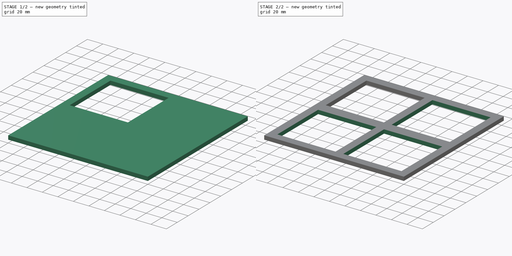
[diagram: build sequence overview — one tinted view per stage of 2, left to right]
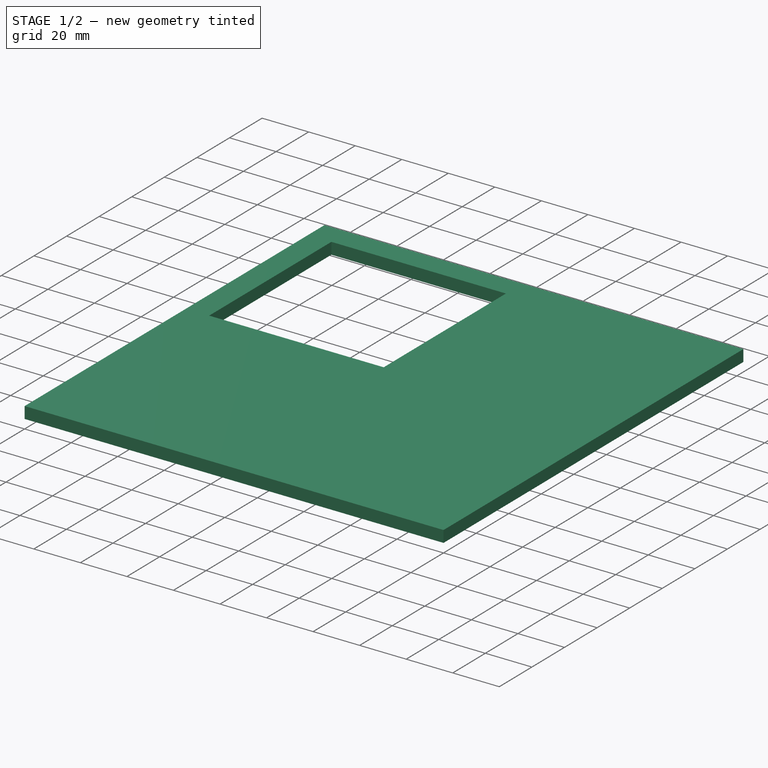
[diagram: stage 1 of 2 — iso view after this stage's code; geometry added in this stage tinted green]
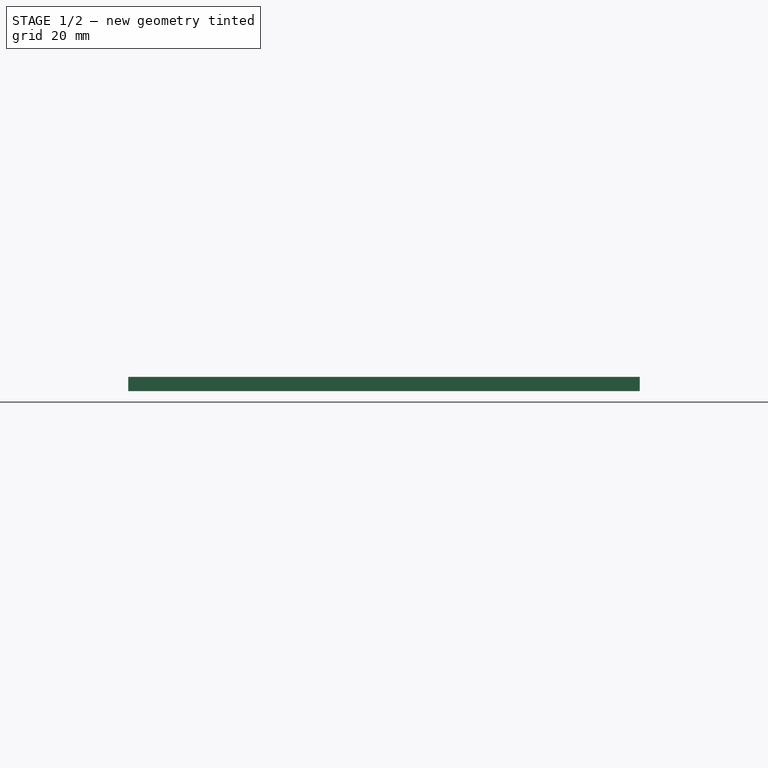
[diagram: stage 1 of 2 — front view after this stage's code; geometry added in this stage tinted green]
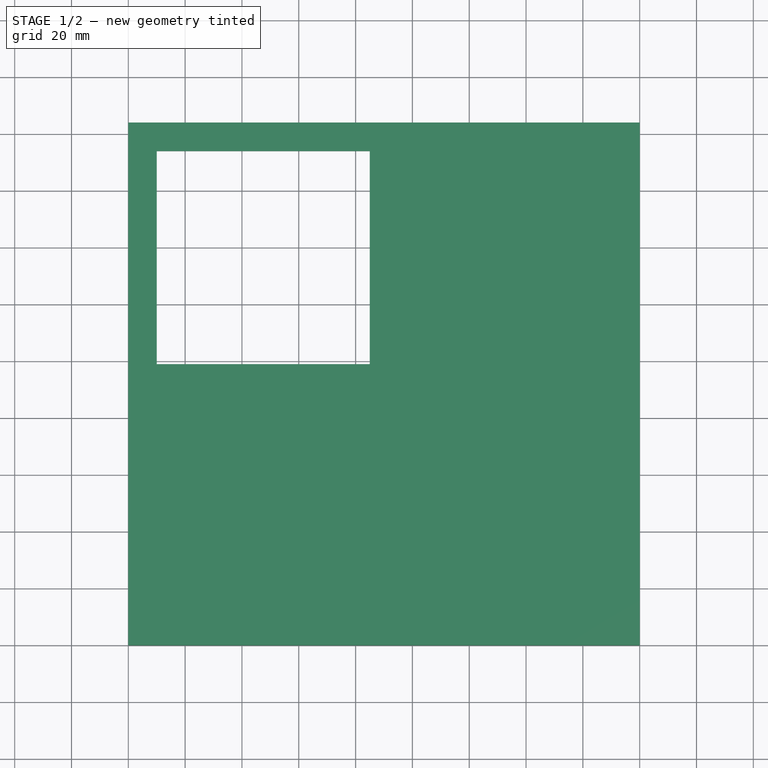
[diagram: stage 1 of 2 — top view after this stage's code; geometry added in this stage tinted green]
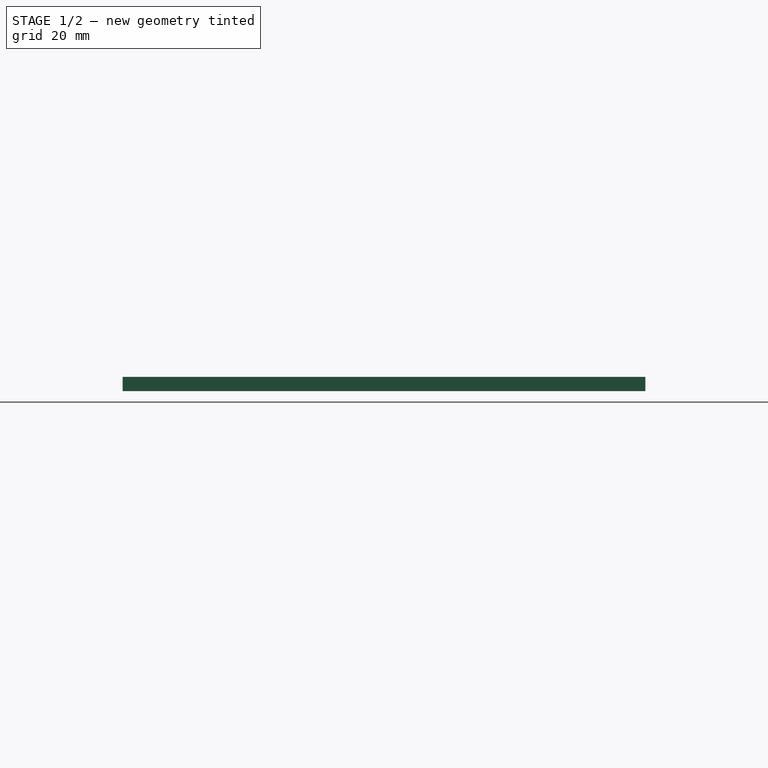
[diagram: stage 1 of 2 — right view after this stage's code; geometry added in this stage tinted green]
FCSTD DOCUMENT  (FreeCAD 1.0R39319 (Git))
Label: epaper_holder
License: All rights reserved
objects: Sketcher::SketchObject×2, PartDesign::LinearPattern×2, PartDesign::Pad×1, PartDesign::Pocket×1, PartDesign::MultiTransform×1, PartDesign::Body×1
note: 17 computed .brp shape members not serialized (recipe doc carries the construction recipe); baked Part::Feature solids carry a one-line shape summary decoded from their .brp

FEATURE [Sketcher::SketchObject] Sketch
  ArcFitTolerance = 1e-06
  AttachmentSupport = -> [XY_Plane]
  FullyConstrained = false
  MakeInternals = false
  MapMode = 5
  sketch-geometry (4):
    g0: LineSegment StartX=0 StartY=0.0398328 StartZ=0 EndX=180 EndY=0.0398328 EndZ=0
    g1: LineSegment StartX=180 StartY=0.0398328 StartZ=0 EndX=180 EndY=184.04 EndZ=0
    g2: LineSegment StartX=180 StartY=184.04 StartZ=0 EndX=0 EndY=184.04 EndZ=0
    g3: LineSegment StartX=0 StartY=184.04 StartZ=0 EndX=0 EndY=0.0398328 EndZ=0
  constraints (11):
    c: Coincident(g0,g1)
    c: Coincident(g1,g2)
    c: Coincident(g2,g3)
    c: Coincident(g3,g0)
    c: Horizontal(g0)
    c: Horizontal(g2)
    c: Vertical(g1)
    c: Vertical(g3)
    c: PointOnObject(g0,g-2)
    c: DistanceX(g2,g2) = 180
    c: DistanceY(g3,g3) = 184
FEATURE [PartDesign::Pad] Pad
  Direction = (0,0,1)
  Length = 5
  Length2 = 10
  Profile = -> Sketch
  ReferenceAxis = -> Sketch [N_Axis]
  Refine = true
  Suppressed = false
  Type = 0
FEATURE [Sketcher::SketchObject] Sketch001
  ArcFitTolerance = 1e-06
  AttachmentSupport = -> [Pad]
  FullyConstrained = true
  MakeInternals = false
  MapMode = 5
  Placement = pos=(0,0,5) rot=(0,0,1;0rad)
  sketch-geometry (4):
    g0: LineSegment StartX=10 StartY=174 StartZ=0 EndX=10 EndY=99 EndZ=0
    g1: LineSegment StartX=10 StartY=99 StartZ=0 EndX=85 EndY=99 EndZ=0
    g2: LineSegment StartX=85 StartY=99 StartZ=0 EndX=85 EndY=174 EndZ=0
    g3: LineSegment StartX=85 StartY=174 StartZ=0 EndX=10 EndY=174 EndZ=0
  constraints (12):
    c: Coincident(g0,g1)
    c: Coincident(g1,g2)
    c: Coincident(g2,g3)
    c: Coincident(g3,g0)
    c: Vertical(g0)
    c: Vertical(g2)
    c: Horizontal(g1)
    c: Horizontal(g3)
    c: DistanceX(g3,g3) = 75
    c: DistanceY(g0,g0) = 75
    c: Distance(g-2,g0) = 10
    c: Distance(g-1,g1) = 99
FEATURE [PartDesign::Pocket] Pocket
  BaseFeature = -> Pad
  Direction = (0,0,-1)
  Length = 5
  Length2 = 5
  Profile = -> Sketch001
  ReferenceAxis = -> Sketch001 [N_Axis]
  Refine = true
  Suppressed = false
  Type = 0
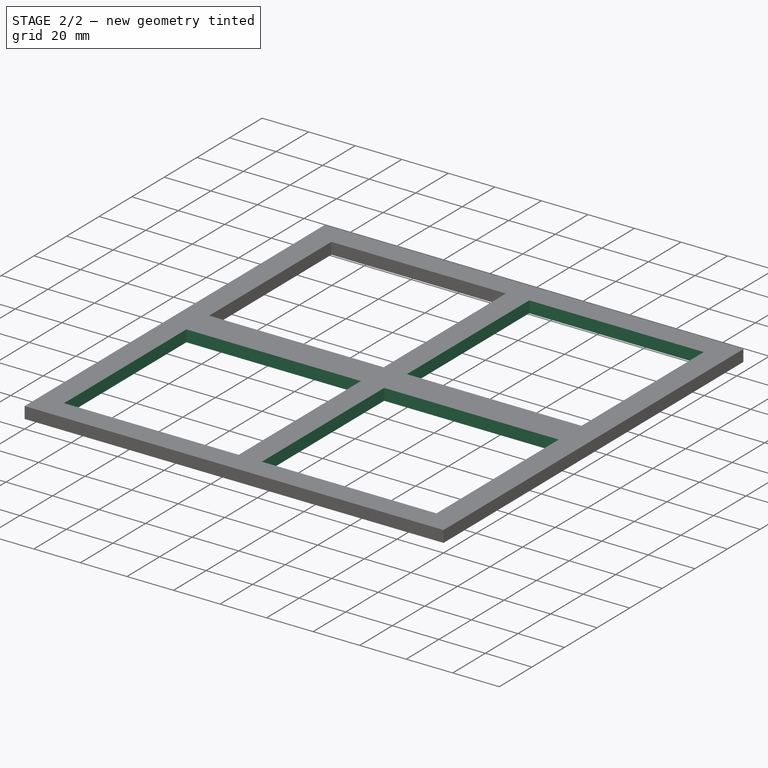
[diagram: stage 2 of 2 — iso view after this stage's code; geometry added in this stage tinted green]
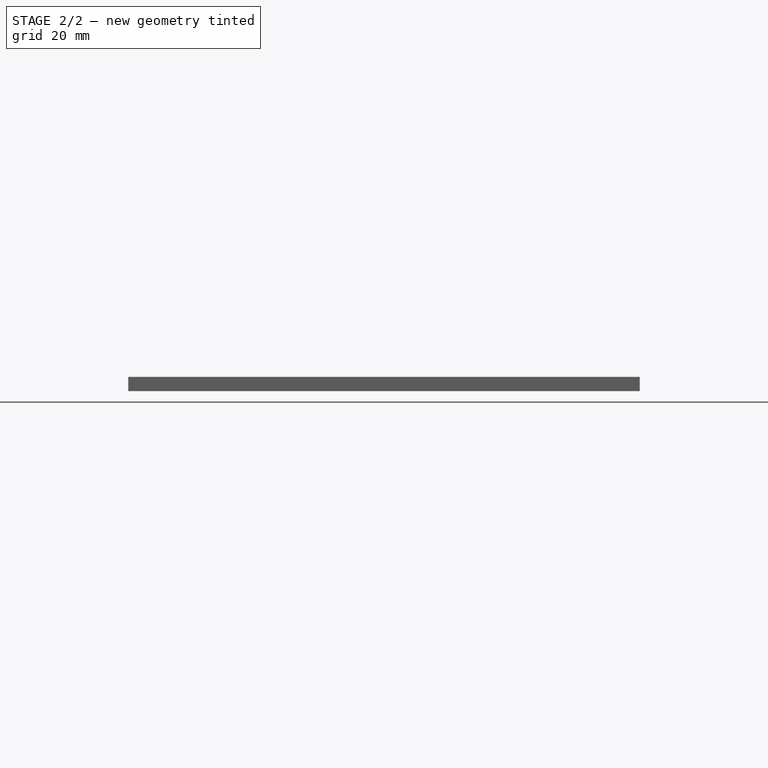
[diagram: stage 2 of 2 — front view after this stage's code; geometry added in this stage tinted green]
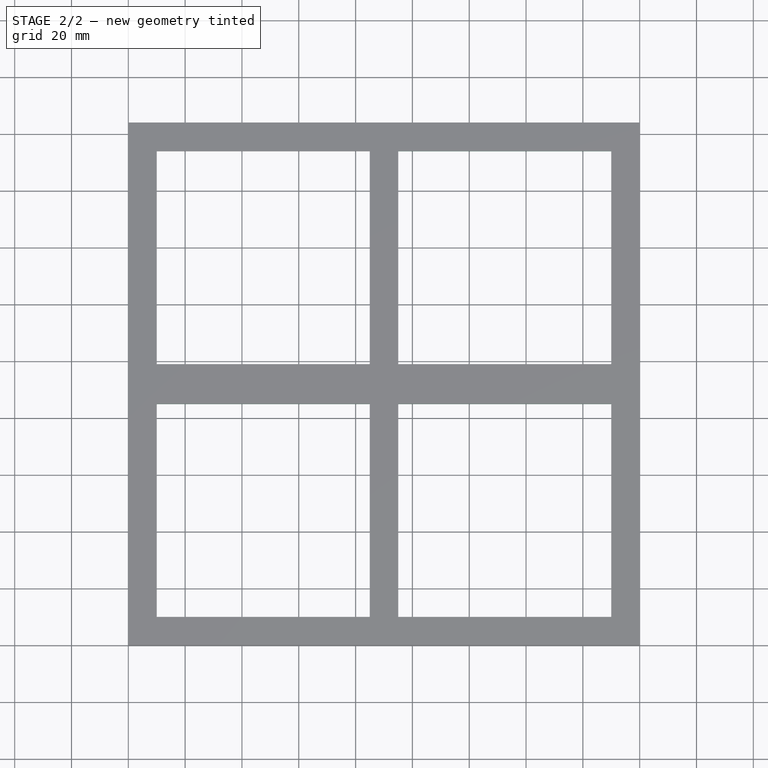
[diagram: stage 2 of 2 — top view after this stage's code; geometry added in this stage tinted green]
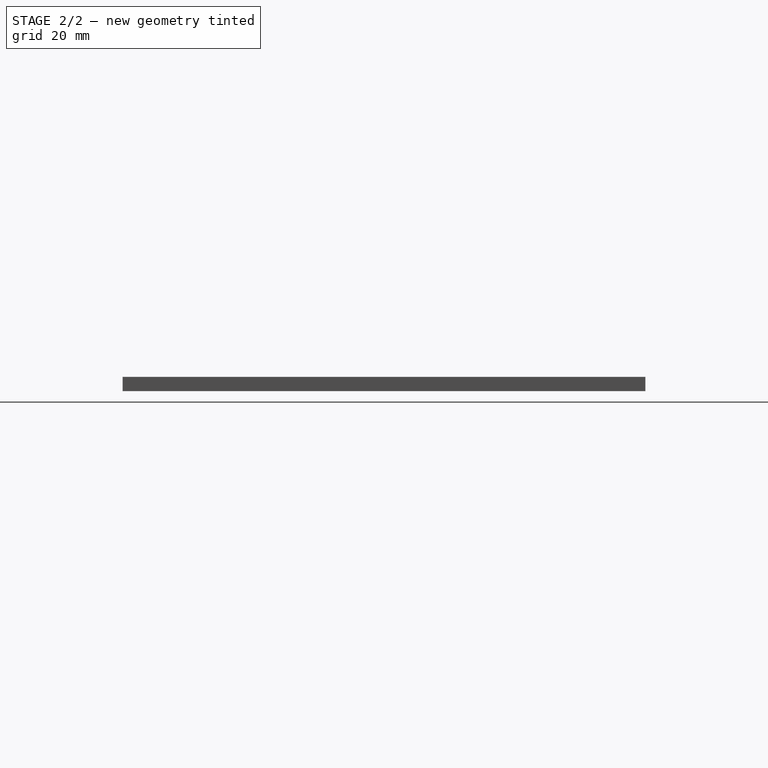
[diagram: stage 2 of 2 — right view after this stage's code; geometry added in this stage tinted green]
FEATURE [PartDesign::LinearPattern] LinearPattern
  Direction = -> Sketch001 [H_Axis]
  Length = 85
  Mode = 0
  Occurrences = 2
  Offset = 85
  Refine = true
  Suppressed = false
  TransformMode = 0
FEATURE [PartDesign::LinearPattern] LinearPattern001
  Direction = -> Sketch001 [V_Axis]
  Length = 89
  Mode = 0
  Occurrences = 2
  Offset = 89
  Refine = true
  Reversed = true
  Suppressed = false
  TransformMode = 0
FEATURE [PartDesign::MultiTransform] MultiTransform
  BaseFeature = -> Pocket
  Originals = -> [Pocket]
  Refine = true
  Suppressed = false
  TransformMode = 0
  Transformations = -> [LinearPattern,LinearPattern001]
FEATURE [PartDesign::Body] Body  label="Corps"
  AllowCompound = false
  Group = -> [Sketch,Pad,Sketch001,Pocket,MultiTransform,LinearPattern,LinearPattern001]
  Origin = -> Origin
  Tip = -> MultiTransform
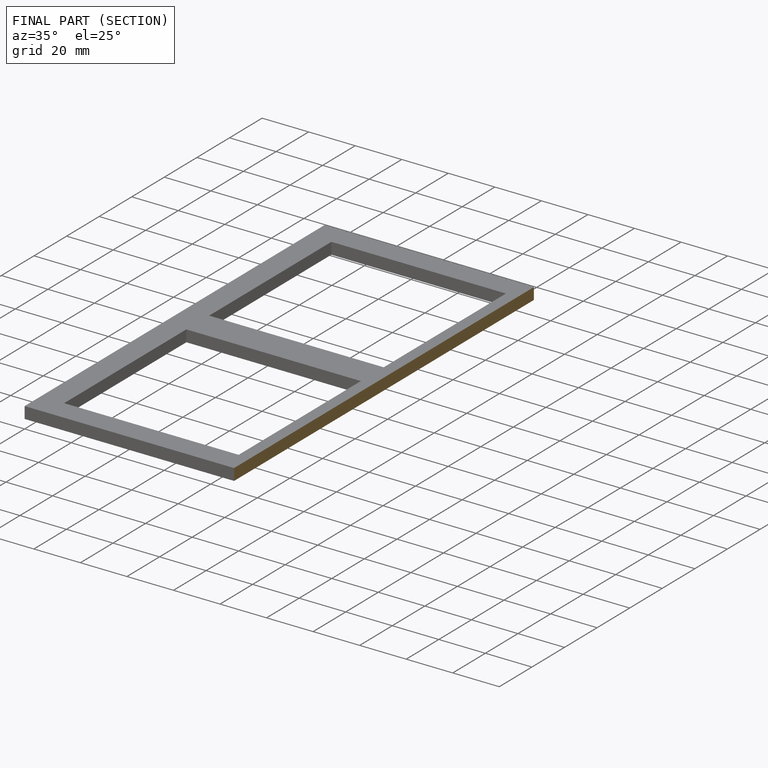
[diagram: finished part — half-section view (interior)]
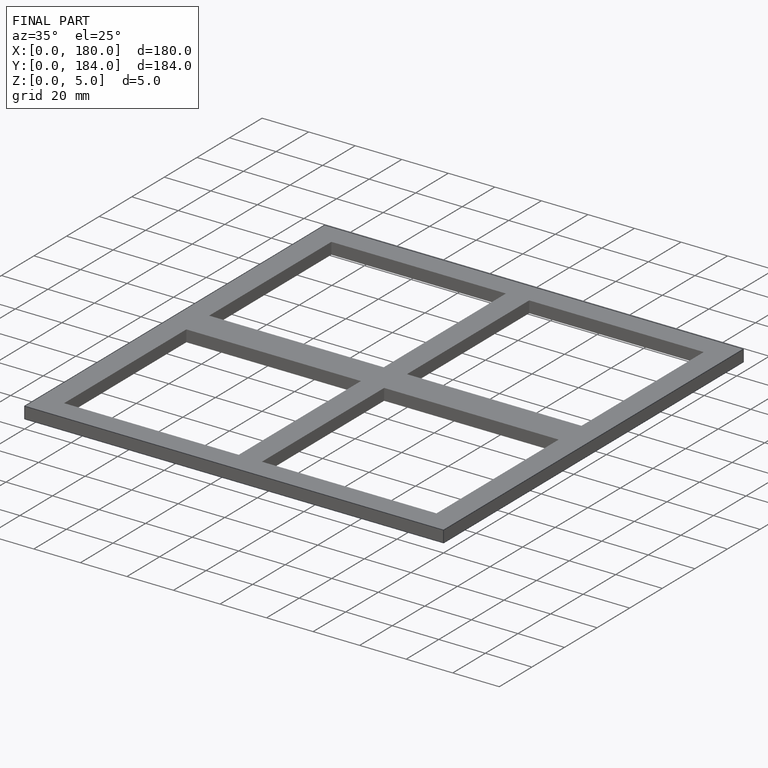
[diagram: finished part — iso view with bounding-box wireframe]
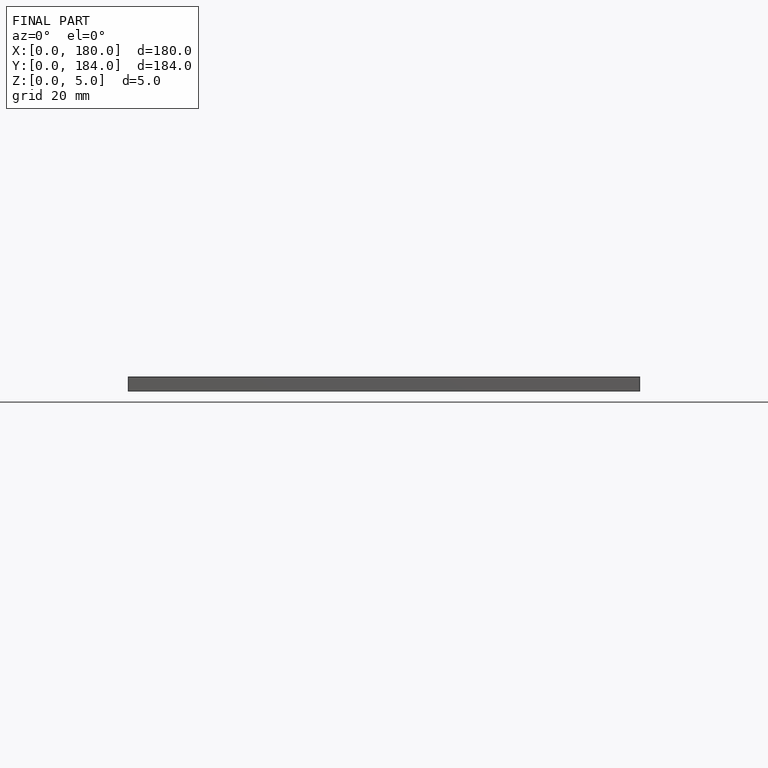
[diagram: finished part — front view with bounding-box wireframe]
